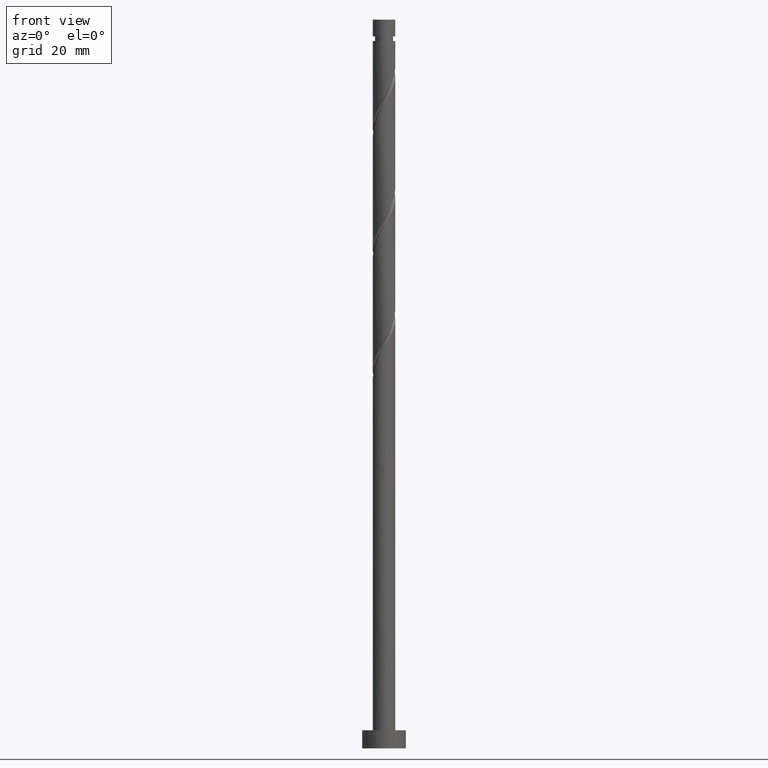
[diagram: clean part render]
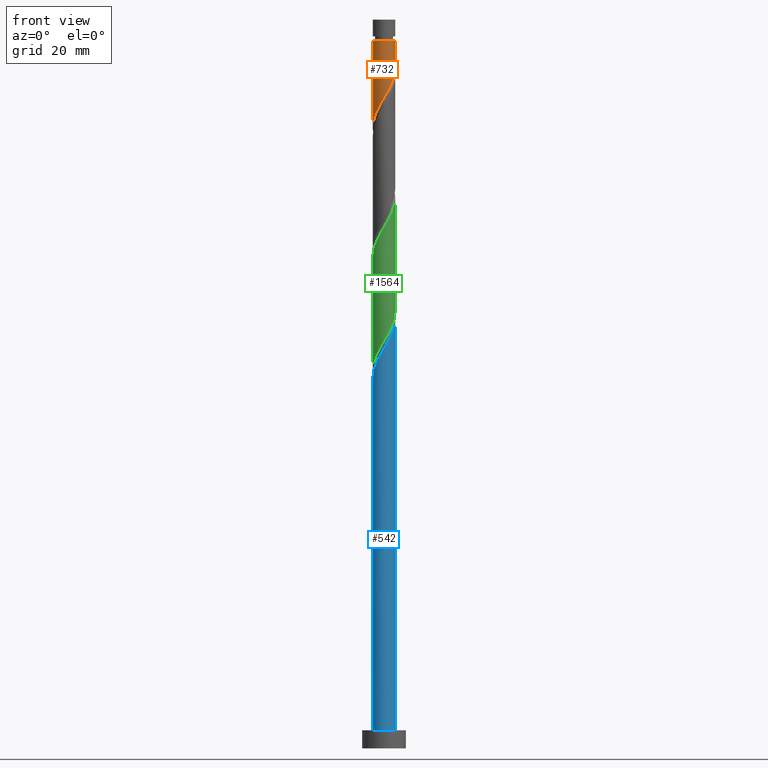
[diagram: same view with three faces highlighted in distinct colors, each labeled with its STEP entity id]
A machine part, front view with three faces highlighted in distinct colors.
Their STEP definitions:

[orange] entity #732 — the highlighted cylindrical surface (edge-blend (fillet) strip) has radius 3.1 mm, axis along (-0, -0, -1).
#70 = DIRECTION ( 'NONE',  ( -0.000000000000000000, -0.000000000000000000, -1.000000000000000000 ) ) ;
#126 = CARTESIAN_POINT ( 'NONE',  ( -3.094146113249972352, -0.1904201403740952703, 170.5278380590662266 ) ) ;
#148 = CARTESIAN_POINT ( 'NONE',  ( -3.100000000000000089, -0.09530005013879230824, 170.3656795134155573 ) ) ;
#200 = CARTESIAN_POINT ( 'NONE',  ( -3.099999999999988098, 0.000000000000000000, 194.1389491701773125 ) ) ;
#213 = CARTESIAN_POINT ( 'NONE',  ( 2.322539071194071436, -2.053244326128037756, 183.0278380590662266 ) ) ;
#231 = CARTESIAN_POINT ( 'NONE',  ( 3.100000000000000977, 1.181348971045986316E-15, 186.8691824920540796 ) ) ;
#258 = CARTESIAN_POINT ( 'NONE',  ( 3.100000000000000089, 3.796405077356794918E-16, 200.0000000000000000 ) ) ;
#353 = CARTESIAN_POINT ( 'NONE',  ( 2.592853814885977215, -1.747476256661028460, 183.7222825035107121 ) ) ;
#373 = CIRCLE ( 'NONE', #1648, 3.099999999999988098 ) ;
#380 = CARTESIAN_POINT ( 'NONE',  ( 0.9847556738719618341, -2.939431282200177353, 180.2500602812884267 ) ) ;
#418 = EDGE_CURVE ( 'NONE', #610, #1373, #826, .T. ) ;
#425 = DIRECTION ( 'NONE',  ( -0.000000000000000000, -0.000000000000000000, -1.000000000000000000 ) ) ;
#488 = CARTESIAN_POINT ( 'NONE',  ( -3.100000000000000089, 0.000000000000000000, 200.0000000000000000 ) ) ;
#504 = CARTESIAN_POINT ( 'NONE',  ( 1.711981735581150632, -2.584399066908311671, 181.6389491701773409 ) ) ;
#526 = DIRECTION ( 'NONE',  ( -1.000000000000000000, 0.000000000000000000, 0.000000000000000000 ) ) ;
#533 = CARTESIAN_POINT ( 'NONE',  ( -0.6168922110061054731, -3.037999999999999812, 177.4722825035106553 ) ) ;
#599 = DIRECTION ( 'NONE',  ( -1.000000000000000000, 0.000000000000000000, 0.000000000000000000 ) ) ;
#610 = VERTEX_POINT ( 'NONE', #200 ) ;
#620 = CARTESIAN_POINT ( 'NONE',  ( 2.956784599678834002, -1.016852498676616312, 185.1111713923995126 ) ) ;
#625 = LINE ( 'NONE', #258, #740 ) ;
#659 = CARTESIAN_POINT ( 'NONE',  ( -1.747476256661028238, -2.592853814885977215, 175.3889491701773125 ) ) ;
#669 = CARTESIAN_POINT ( 'NONE',  ( -1.016852498676614980, -2.956784599678835779, 176.7778380590662834 ) ) ;
#701 = CARTESIAN_POINT ( 'NONE',  ( -3.069076826178780415, -0.5977722040837869510, 171.2222825035106553 ) ) ;
#732 = ADVANCED_FACE ( 'NONE', ( #981 ), #1678, .T. ) ;
#740 = VECTOR ( 'NONE', #1166, 1000.000000000000000 ) ;
#756 = EDGE_CURVE ( 'NONE', #1141, #1373, #1578, .T. ) ;
#773 = CARTESIAN_POINT ( 'NONE',  ( 3.099999999999999645, -0.3115617227303643100, 186.3357561228648080 ) ) ;
#783 = EDGE_LOOP ( 'NONE', ( #1497, #1698, #960, #1402 ) ) ;
#785 = CARTESIAN_POINT ( 'NONE',  ( 0.5977722040837861739, -3.069076826178781303, 179.5556158368440265 ) ) ;
#815 = CARTESIAN_POINT ( 'NONE',  ( 3.100000000000000533, 1.181348971045986316E-15, 186.8691824920540796 ) ) ;
#826 = LINE ( 'NONE', #488, #1110 ) ;
#898 = EDGE_CURVE ( 'NONE', #1419, #610, #373, .T. ) ;
#901 = CARTESIAN_POINT ( 'NONE',  ( 3.099999999999988098, 3.796405077356787029E-16, 194.1389491701773125 ) ) ;
#960 = ORIENTED_EDGE ( 'NONE', *, *, #418, .T. ) ;
#981 = FACE_OUTER_BOUND ( 'NONE', #783, .T. ) ;
#1065 = CARTESIAN_POINT ( 'NONE',  ( -3.100000000000000089, -1.899130624339749892E-15, 170.2025158253874224 ) ) ;
#1106 = CARTESIAN_POINT ( 'NONE',  ( -1.382164377668821054, -2.774819207282405831, 176.0833936146217980 ) ) ;
#1110 = VECTOR ( 'NONE', #1328, 1000.000000000000000 ) ;
#1141 = VERTEX_POINT ( 'NONE', #815 ) ;
#1166 = DIRECTION ( 'NONE',  ( -0.000000000000000000, -0.000000000000000000, -1.000000000000000000 ) ) ;
#1274 = CARTESIAN_POINT ( 'NONE',  ( 0.000000000000000000, 0.000000000000000000, 200.0000000000000000 ) ) ;
#1296 = CARTESIAN_POINT ( 'NONE',  ( 2.052224327502166101, -2.359012395595048606, 182.3333936146217411 ) ) ;
#1301 = EDGE_CURVE ( 'NONE', #1419, #1141, #625, .T. ) ;
#1314 = CARTESIAN_POINT ( 'NONE',  ( 3.037999999999999812, -0.6168922110061054731, 185.8056158368440265 ) ) ;
#1321 = CARTESIAN_POINT ( 'NONE',  ( 0.1904201403740945764, -3.094146113249972796, 178.8611713923995694 ) ) ;
#1328 = DIRECTION ( 'NONE',  ( -0.000000000000000000, -0.000000000000000000, -1.000000000000000000 ) ) ;
#1333 = AXIS2_PLACEMENT_3D ( 'NONE', #1274, #70, #599 ) ;
#1334 = CARTESIAN_POINT ( 'NONE',  ( -2.584399066908310783, -1.711981735581151520, 173.3056158368439696 ) ) ;
#1373 = VERTEX_POINT ( 'NONE', #1445 ) ;
#1402 = ORIENTED_EDGE ( 'NONE', *, *, #756, .F. ) ;
#1419 = VERTEX_POINT ( 'NONE', #901 ) ;
#1445 = CARTESIAN_POINT ( 'NONE',  ( -3.100000000000000533, -1.899130624339749892E-15, 170.2025158253874224 ) ) ;
#1495 = CARTESIAN_POINT ( 'NONE',  ( -2.359012395595048606, -2.052224327502166101, 174.0000602812884836 ) ) ;
#1497 = ORIENTED_EDGE ( 'NONE', *, *, #1301, .F. ) ;
#1543 = CARTESIAN_POINT ( 'NONE',  ( -0.2169319233355973542, -3.119215400321165621, 178.1667269479551408 ) ) ;
#1553 = CARTESIAN_POINT ( 'NONE',  ( 2.774819207282405387, -1.382164377668822164, 184.4167269479550839 ) ) ;
#1578 =( BOUNDED_CURVE ( )  B_SPLINE_CURVE ( 2, ( #231, #773, #1314, #620, #1553, #353, #213, #1296, #504, #1582, #380, #785, #1321, #1543, #533, #669, #1106, #659, #1749, #1495, #1334, #1627, #1616, #701, #126, #148, #1065 ),
 .UNSPECIFIED., .F., .T. ) 
 B_SPLINE_CURVE_WITH_KNOTS ( ( 3, 2, 2, 2, 2, 2, 2, 2, 2, 2, 2, 2, 2, 3 ),
 ( 0.3045317669814464612, 0.3125000000000000000, 0.3229166666666666852, 0.3333333333333333148, 0.3437500000000000000, 0.3541666666666666852, 0.3645833333333333148, 0.3750000000000000000, 0.3854166666666666852, 0.3958333333333333148, 0.4062500000000000000, 0.4166666666666666852, 0.4270833333333333148, 0.4295317669814461281 ),
 .UNSPECIFIED. ) 
 CURVE ( )  GEOMETRIC_REPRESENTATION_ITEM ( )  RATIONAL_B_SPLINE_CURVE ( ( 0.9062941362546447222, 0.9031415850403492485, 0.9090909090909243817, 0.9013135103398428605, 0.9090909090909243817, 0.9013135103398428605, 0.9090909090909243817, 0.9013135103398428605, 0.9090909090909243817, 0.9013135103398428605, 0.9090909090909243817, 0.9013135103398428605, 0.9090909090909243817, 0.9013135103398428605, 0.9090909090909243817, 0.9013135103398428605, 0.9090909090909243817, 0.9013135103398428605, 0.9090909090909243817, 0.9013135103398428605, 0.9090909090909243817, 0.9013135103398428605, 0.9090909090909243817, 0.9013135103398428605, 0.9090909090909243817, 0.9072628343904183268, 0.9062941362546449442 ) ) 
 REPRESENTATION_ITEM ( '' )  );
#1582 = CARTESIAN_POINT ( 'NONE',  ( 1.371739143660136495, -2.809785738221574292, 180.9445047257328838 ) ) ;
#1616 = CARTESIAN_POINT ( 'NONE',  ( -2.939431282200177353, -0.9847556738719620562, 171.9167269479551123 ) ) ;
#1627 = CARTESIAN_POINT ( 'NONE',  ( -2.809785738221574292, -1.371739143660136495, 172.6111713923995126 ) ) ;
#1648 = AXIS2_PLACEMENT_3D ( 'NONE', #1738, #425, #526 ) ;
#1678 = CYLINDRICAL_SURFACE ( 'NONE', #1333, 3.100000000000000089 ) ;
#1698 = ORIENTED_EDGE ( 'NONE', *, *, #898, .T. ) ;
#1738 = CARTESIAN_POINT ( 'NONE',  ( 0.000000000000000000, 0.000000000000000000, 194.1389491701773125 ) ) ;
#1749 = CARTESIAN_POINT ( 'NONE',  ( -2.053244326128037756, -2.322539071194071436, 174.6945047257329406 ) ) ;

[blue] entity #542 — the highlighted cylindrical surface (edge-blend (fillet) strip) has radius 3.1 mm, axis along (-0, -0, -1).
#18 = CARTESIAN_POINT ( 'NONE',  ( -3.100000000000002309, -1.958945762114218998E-15, 101.4087158483005453 ) ) ;
#66 = CARTESIAN_POINT ( 'NONE',  ( -2.956784599678840220, -1.016852498676614092, 103.1667269479550839 ) ) ;
#95 = CARTESIAN_POINT ( 'NONE',  ( 0.2169319233355950505, -3.119215400321167841, 110.1111713923995268 ) ) ;
#120 = CARTESIAN_POINT ( 'NONE',  ( 3.094146113249975460, -0.1904201403740988507, 117.7500602812884267 ) ) ;
#161 = ORIENTED_EDGE ( 'NONE', *, *, #453, .T. ) ;
#164 = CIRCLE ( 'NONE', #1187, 3.100000000000000089 ) ;
#226 = CARTESIAN_POINT ( 'NONE',  ( -2.774819207282409383, -1.382164377668821054, 103.8611713923995268 ) ) ;
#247 = DIRECTION ( 'NONE',  ( -1.000000000000000000, 0.000000000000000000, 0.000000000000000000 ) ) ;
#252 = CARTESIAN_POINT ( 'NONE',  ( 3.100000000000000089, 3.796405077356794918E-16, 200.0000000000000000 ) ) ;
#254 = CARTESIAN_POINT ( 'NONE',  ( 1.016852498676613870, -2.956784599678840220, 111.5000602812884267 ) ) ;
#256 = LINE ( 'NONE', #1370, #1614 ) ;
#262 = CARTESIAN_POINT ( 'NONE',  ( 0.000000000000000000, 0.000000000000000000, 200.0000000000000000 ) ) ;
#306 = CARTESIAN_POINT ( 'NONE',  ( -0.1904201403740973519, -3.094146113249975460, 109.4167269479550697 ) ) ;
#342 = EDGE_LOOP ( 'NONE', ( #1688, #1152, #1693, #161 ) ) ;
#371 = VERTEX_POINT ( 'NONE', #1625 ) ;
#375 = CARTESIAN_POINT ( 'NONE',  ( 3.100000000000002309, -0.09530005013880189779, 117.9122188269390819 ) ) ;
#435 = CARTESIAN_POINT ( 'NONE',  ( -1.371739143660140492, -2.809785738221576512, 107.3333936146217695 ) ) ;
#453 = EDGE_CURVE ( 'NONE', #371, #692, #164, .T. ) ;
#498 = CARTESIAN_POINT ( 'NONE',  ( 1.747476256661027350, -2.592853814885982100, 112.8889491701772982 ) ) ;
#510 = CARTESIAN_POINT ( 'NONE',  ( 3.069076826178783524, -0.5977722040837909478, 117.0556158368439839 ) ) ;
#542 = ADVANCED_FACE ( 'NONE', ( #631 ), #1061, .T. ) ;
#627 = CARTESIAN_POINT ( 'NONE',  ( -3.100000000000002309, -1.958945762114218998E-15, 101.4087158483005453 ) ) ;
#631 = FACE_OUTER_BOUND ( 'NONE', #342, .T. ) ;
#692 = VERTEX_POINT ( 'NONE', #1126 ) ;
#769 = CARTESIAN_POINT ( 'NONE',  ( 2.939431282200180462, -0.9847556738719657199, 116.3611713923995268 ) ) ;
#777 = CARTESIAN_POINT ( 'NONE',  ( 3.100000000000002309, 0.000000000000000000, 118.0753825149672167 ) ) ;
#791 = CARTESIAN_POINT ( 'NONE',  ( 2.359012395595049938, -2.052224327502170542, 114.2778380590661840 ) ) ;
#792 = CARTESIAN_POINT ( 'NONE',  ( 0.000000000000000000, 0.000000000000000000, 5.000000000000000000 ) ) ;
#798 = LINE ( 'NONE', #252, #941 ) ;
#844 = EDGE_CURVE ( 'NONE', #1073, #371, #256, .T. ) ;
#859 = AXIS2_PLACEMENT_3D ( 'NONE', #262, #1591, #247 ) ;
#871 =( BOUNDED_CURVE ( )  B_SPLINE_CURVE ( 2, ( #18, #884, #1287, #66, #226, #1020, #1548, #1144, #1029, #435, #978, #1504, #306, #95, #1206, #254, #1186, #498, #1078, #791, #1178, #1327, #769, #510, #120, #375, #777 ),
 .UNSPECIFIED., .F., .T. ) 
 B_SPLINE_CURVE_WITH_KNOTS ( ( 3, 2, 2, 2, 2, 2, 2, 2, 2, 2, 2, 2, 2, 3 ),
 ( 0.05453176698144607260, 0.06250000000000000000, 0.07291666666666662966, 0.08333333333333337034, 0.09375000000000000000, 0.1041666666666666297, 0.1145833333333333703, 0.1250000000000000000, 0.1354166666666666297, 0.1458333333333333703, 0.1562500000000000000, 0.1666666666666666297, 0.1770833333333333703, 0.1795317669814460171 ),
 .UNSPECIFIED. ) 
 CURVE ( )  GEOMETRIC_REPRESENTATION_ITEM ( )  RATIONAL_B_SPLINE_CURVE ( ( 0.9062941362546501622, 0.9031415850403541334, 0.9090909090909298218, 0.9013135103398480785, 0.9090909090909298218, 0.9013135103398480785, 0.9090909090909298218, 0.9013135103398480785, 0.9090909090909298218, 0.9013135103398480785, 0.9090909090909298218, 0.9013135103398480785, 0.9090909090909298218, 0.9013135103398480785, 0.9090909090909298218, 0.9013135103398480785, 0.9090909090909298218, 0.9013135103398480785, 0.9090909090909298218, 0.9013135103398480785, 0.9090909090909298218, 0.9013135103398480785, 0.9090909090909298218, 0.9013135103398480785, 0.9090909090909298218, 0.9072628343904237669, 0.9062941362546502733 ) ) 
 REPRESENTATION_ITEM ( '' )  );
#884 = CARTESIAN_POINT ( 'NONE',  ( -3.100000000000005418, -0.3115617227303464354, 101.9421422174898169 ) ) ;
#941 = VECTOR ( 'NONE', #1337, 1000.000000000000000 ) ;
#978 = CARTESIAN_POINT ( 'NONE',  ( -0.9847556738719654978, -2.939431282200180462, 108.0278380590662124 ) ) ;
#995 = EDGE_CURVE ( 'NONE', #1073, #1670, #871, .T. ) ;
#1020 = CARTESIAN_POINT ( 'NONE',  ( -2.592853814885981656, -1.747476256661028016, 104.5556158368439554 ) ) ;
#1029 = CARTESIAN_POINT ( 'NONE',  ( -1.711981735581154407, -2.584399066908313003, 106.6389491701773125 ) ) ;
#1061 = CYLINDRICAL_SURFACE ( 'NONE', #859, 3.100000000000000089 ) ;
#1073 = VERTEX_POINT ( 'NONE', #627 ) ;
#1078 = CARTESIAN_POINT ( 'NONE',  ( 2.053244326128038200, -2.322539071194075877, 113.5833936146217269 ) ) ;
#1126 = CARTESIAN_POINT ( 'NONE',  ( 3.100000000000000089, 3.796405077356794918E-16, 5.000000000000000000 ) ) ;
#1144 = CARTESIAN_POINT ( 'NONE',  ( -2.052224327502170542, -2.359012395595049938, 105.9445047257328696 ) ) ;
#1152 = ORIENTED_EDGE ( 'NONE', *, *, #995, .F. ) ;
#1178 = CARTESIAN_POINT ( 'NONE',  ( 2.584399066908312115, -1.711981735581156183, 114.9722825035106410 ) ) ;
#1186 = CARTESIAN_POINT ( 'NONE',  ( 1.382164377668820388, -2.774819207282409383, 112.1945047257328696 ) ) ;
#1187 = AXIS2_PLACEMENT_3D ( 'NONE', #792, #1432, #1448 ) ;
#1192 = CARTESIAN_POINT ( 'NONE',  ( 3.100000000000002309, 0.000000000000000000, 118.0753825149672167 ) ) ;
#1200 = DIRECTION ( 'NONE',  ( -0.000000000000000000, -0.000000000000000000, -1.000000000000000000 ) ) ;
#1206 = CARTESIAN_POINT ( 'NONE',  ( 0.6168922110061049180, -3.038000000000003364, 110.8056158368439696 ) ) ;
#1287 = CARTESIAN_POINT ( 'NONE',  ( -3.038000000000003364, -0.6168922110061052511, 102.4722825035106268 ) ) ;
#1327 = CARTESIAN_POINT ( 'NONE',  ( 2.809785738221576512, -1.371739143660140492, 115.6667269479550981 ) ) ;
#1336 = EDGE_CURVE ( 'NONE', #1670, #692, #798, .T. ) ;
#1337 = DIRECTION ( 'NONE',  ( -0.000000000000000000, -0.000000000000000000, -1.000000000000000000 ) ) ;
#1370 = CARTESIAN_POINT ( 'NONE',  ( -3.100000000000000089, 0.000000000000000000, 200.0000000000000000 ) ) ;
#1432 = DIRECTION ( 'NONE',  ( 0.000000000000000000, 0.000000000000000000, 1.000000000000000000 ) ) ;
#1448 = DIRECTION ( 'NONE',  ( 1.000000000000000000, 0.000000000000000000, 0.000000000000000000 ) ) ;
#1504 = CARTESIAN_POINT ( 'NONE',  ( -0.5977722040837896156, -3.069076826178783968, 108.7222825035106553 ) ) ;
#1548 = CARTESIAN_POINT ( 'NONE',  ( -2.322539071194074545, -2.053244326128038200, 105.2500602812884125 ) ) ;
#1591 = DIRECTION ( 'NONE',  ( -0.000000000000000000, -0.000000000000000000, -1.000000000000000000 ) ) ;
#1614 = VECTOR ( 'NONE', #1200, 1000.000000000000000 ) ;
#1625 = CARTESIAN_POINT ( 'NONE',  ( -3.100000000000000089, 0.000000000000000000, 5.000000000000000000 ) ) ;
#1670 = VERTEX_POINT ( 'NONE', #1192 ) ;
#1688 = ORIENTED_EDGE ( 'NONE', *, *, #1336, .F. ) ;
#1693 = ORIENTED_EDGE ( 'NONE', *, *, #844, .T. ) ;

[green] entity #1564 — the highlighted cylindrical surface (edge-blend (fillet) strip) has radius 3.1 mm, axis along (-0, -0, -1).
#32 = EDGE_CURVE ( 'NONE', #752, #742, #1320, .T. ) ;
#47 = CARTESIAN_POINT ( 'NONE',  ( 0.5977722040837861739, -3.069076826178781303, 112.8889491701772982 ) ) ;
#58 = CARTESIAN_POINT ( 'NONE',  ( 1.016852498676613870, -2.956784599678840220, 144.8333936146217980 ) ) ;
#74 = CARTESIAN_POINT ( 'NONE',  ( 3.069076826178783524, -0.5977722040837909478, 150.3889491701773125 ) ) ;
#122 = AXIS2_PLACEMENT_3D ( 'NONE', #881, #1411, #204 ) ;
#143 = CARTESIAN_POINT ( 'NONE',  ( 2.774819207282405387, -1.382164377668822164, 117.7500602812884267 ) ) ;
#165 = CARTESIAN_POINT ( 'NONE',  ( 2.052224327502166101, -2.359012395595048606, 115.6667269479551123 ) ) ;
#174 = CARTESIAN_POINT ( 'NONE',  ( 0.1904201403740945764, -3.094146113249972796, 112.1945047257328838 ) ) ;
#184 = EDGE_CURVE ( 'NONE', #710, #752, #1374, .T. ) ;
#193 = CARTESIAN_POINT ( 'NONE',  ( 2.584399066908312115, -1.711981735581156183, 148.3056158368439696 ) ) ;
#197 = ORIENTED_EDGE ( 'NONE', *, *, #184, .F. ) ;
#202 = CARTESIAN_POINT ( 'NONE',  ( -2.052224327502170542, -2.359012395595049938, 139.2778380590661982 ) ) ;
#204 = DIRECTION ( 'NONE',  ( -1.000000000000000000, 0.000000000000000000, 0.000000000000000000 ) ) ;
#218 = CARTESIAN_POINT ( 'NONE',  ( 2.359012395595049938, -2.052224327502170542, 147.6111713923995410 ) ) ;
#220 = CARTESIAN_POINT ( 'NONE',  ( 3.100000000000002309, 0.000000000000000000, 151.4087158483005169 ) ) ;
#279 = CARTESIAN_POINT ( 'NONE',  ( -3.100000000000000977, -5.174009417492547968E-15, 103.5358491587207368 ) ) ;
#289 = CARTESIAN_POINT ( 'NONE',  ( 3.100000000000001865, -0.3115617227303499326, 119.6690894561981082 ) ) ;
#300 = CARTESIAN_POINT ( 'NONE',  ( -1.382164377668821054, -2.774819207282405831, 109.4167269479551123 ) ) ;
#312 = CARTESIAN_POINT ( 'NONE',  ( 2.592853814885977215, -1.747476256661028460, 117.0556158368439981 ) ) ;
#339 = CARTESIAN_POINT ( 'NONE',  ( -3.038000000000003364, -0.6168922110061052511, 135.8056158368439696 ) ) ;
#354 = VERTEX_POINT ( 'NONE', #1210 ) ;
#362 = ORIENTED_EDGE ( 'NONE', *, *, #32, .F. ) ;
#387 = DIRECTION ( 'NONE',  ( -0.000000000000000000, -0.000000000000000000, -1.000000000000000000 ) ) ;
#440 =( BOUNDED_CURVE ( )  B_SPLINE_CURVE ( 2, ( #1058, #289, #1214, #1355, #143, #312, #682, #165, #1237, #450, #706, #47, #174, #1119, #973, #982, #300, #832, #1633, #1226, #989, #441, #715, #1383, #1652, #1508, #279 ),
 .UNSPECIFIED., .F., .T. ) 
 B_SPLINE_CURVE_WITH_KNOTS ( ( 3, 2, 2, 2, 2, 2, 2, 2, 2, 2, 2, 2, 2, 3 ),
 ( 0.8045317669814461281, 0.8125000000000000000, 0.8229166666666666297, 0.8333333333333333703, 0.8437500000000000000, 0.8541666666666666297, 0.8645833333333333703, 0.8750000000000000000, 0.8854166666666666297, 0.8958333333333333703, 0.9062500000000000000, 0.9166666666666666297, 0.9270833333333333703, 0.9295317669814463502 ),
 .UNSPECIFIED. ) 
 CURVE ( )  GEOMETRIC_REPRESENTATION_ITEM ( )  RATIONAL_B_SPLINE_CURVE ( ( 0.9062941362546449442, 0.9031415850403489154, 0.9090909090909243817, 0.9013135103398428605, 0.9090909090909243817, 0.9013135103398428605, 0.9090909090909243817, 0.9013135103398428605, 0.9090909090909243817, 0.9013135103398428605, 0.9090909090909243817, 0.9013135103398428605, 0.9090909090909243817, 0.9013135103398428605, 0.9090909090909243817, 0.9013135103398428605, 0.9090909090909243817, 0.9013135103398428605, 0.9090909090909243817, 0.9013135103398428605, 0.9090909090909243817, 0.9013135103398428605, 0.9090909090909243817, 0.9013135103398428605, 0.9090909090909243817, 0.9072628343904181047, 0.9062941362546446111 ) ) 
 REPRESENTATION_ITEM ( '' )  );
#441 = CARTESIAN_POINT ( 'NONE',  ( -2.809785738221574292, -1.371739143660136495, 105.9445047257328696 ) ) ;
#450 = CARTESIAN_POINT ( 'NONE',  ( 1.371739143660136495, -2.809785738221574292, 114.2778380590661840 ) ) ;
#473 = CARTESIAN_POINT ( 'NONE',  ( -3.100000000000002309, -1.958945762114218998E-15, 134.7420491816338597 ) ) ;
#475 = ORIENTED_EDGE ( 'NONE', *, *, #781, .T. ) ;
#516 = LINE ( 'NONE', #1095, #1024 ) ;
#556 = VECTOR ( 'NONE', #1171, 1000.000000000000000 ) ;
#587 = CARTESIAN_POINT ( 'NONE',  ( -3.100000000000005418, -0.3115617227303442704, 135.2754755508231312 ) ) ;
#594 = CARTESIAN_POINT ( 'NONE',  ( -1.711981735581154407, -2.584399066908313003, 139.9722825035105984 ) ) ;
#603 = CARTESIAN_POINT ( 'NONE',  ( -0.1904201403740973519, -3.094146113249975460, 142.7500602812884551 ) ) ;
#608 = CARTESIAN_POINT ( 'NONE',  ( -0.9847556738719654978, -2.939431282200180462, 141.3611713923995694 ) ) ;
#682 = CARTESIAN_POINT ( 'NONE',  ( 2.322539071194071436, -2.053244326128037756, 116.3611713923995268 ) ) ;
#706 = CARTESIAN_POINT ( 'NONE',  ( 0.9847556738719618341, -2.939431282200177353, 113.5833936146217553 ) ) ;
#710 = VERTEX_POINT ( 'NONE', #1004 ) ;
#715 = CARTESIAN_POINT ( 'NONE',  ( -2.939431282200177353, -0.9847556738719620562, 105.2500602812884409 ) ) ;
#739 = CARTESIAN_POINT ( 'NONE',  ( -1.371739143660140492, -2.809785738221576512, 140.6667269479550839 ) ) ;
#742 = VERTEX_POINT ( 'NONE', #1172 ) ;
#752 = VERTEX_POINT ( 'NONE', #220 ) ;
#781 = EDGE_CURVE ( 'NONE', #710, #354, #516, .T. ) ;
#807 = CARTESIAN_POINT ( 'NONE',  ( 3.100000000000000089, 3.796405077356794918E-16, 200.0000000000000000 ) ) ;
#832 = CARTESIAN_POINT ( 'NONE',  ( -1.747476256661028238, -2.592853814885977215, 108.7222825035106410 ) ) ;
#861 = CARTESIAN_POINT ( 'NONE',  ( -2.592853814885981656, -1.747476256661028016, 137.8889491701773409 ) ) ;
#877 = CARTESIAN_POINT ( 'NONE',  ( 0.6168922110061049180, -3.038000000000003364, 144.1389491701773409 ) ) ;
#881 = CARTESIAN_POINT ( 'NONE',  ( 0.000000000000000000, 0.000000000000000000, 200.0000000000000000 ) ) ;
#886 = CARTESIAN_POINT ( 'NONE',  ( 3.094146113249975460, -0.1904201403740988507, 151.0833936146217411 ) ) ;
#900 = EDGE_LOOP ( 'NONE', ( #362, #197, #475, #1619 ) ) ;
#973 = CARTESIAN_POINT ( 'NONE',  ( -0.6168922110061054731, -3.037999999999999812, 110.8056158368439696 ) ) ;
#982 = CARTESIAN_POINT ( 'NONE',  ( -1.016852498676614980, -2.956784599678835779, 110.1111713923995268 ) ) ;
#989 = CARTESIAN_POINT ( 'NONE',  ( -2.584399066908310783, -1.711981735581151520, 106.6389491701772982 ) ) ;
#1004 = CARTESIAN_POINT ( 'NONE',  ( -3.100000000000002309, -1.958945762114218998E-15, 134.7420491816338597 ) ) ;
#1023 = CARTESIAN_POINT ( 'NONE',  ( 2.809785738221576512, -1.371739143660140492, 149.0000602812884267 ) ) ;
#1024 = VECTOR ( 'NONE', #387, 1000.000000000000000 ) ;
#1058 = CARTESIAN_POINT ( 'NONE',  ( 3.100000000000000089, 4.501089117529644308E-15, 120.2025158253874082 ) ) ;
#1095 = CARTESIAN_POINT ( 'NONE',  ( -3.100000000000000089, 0.000000000000000000, 200.0000000000000000 ) ) ;
#1111 = EDGE_CURVE ( 'NONE', #742, #354, #440, .T. ) ;
#1119 = CARTESIAN_POINT ( 'NONE',  ( -0.2169319233355973542, -3.119215400321165621, 111.5000602812884551 ) ) ;
#1127 = FACE_OUTER_BOUND ( 'NONE', #900, .T. ) ;
#1138 = CARTESIAN_POINT ( 'NONE',  ( 1.382164377668820388, -2.774819207282409383, 145.5278380590661982 ) ) ;
#1145 = CARTESIAN_POINT ( 'NONE',  ( 3.100000000000002309, -0.09530005013879755404, 151.2455521602723536 ) ) ;
#1171 = DIRECTION ( 'NONE',  ( -0.000000000000000000, -0.000000000000000000, -1.000000000000000000 ) ) ;
#1172 = CARTESIAN_POINT ( 'NONE',  ( 3.100000000000000533, 4.501089117529644308E-15, 120.2025158253874082 ) ) ;
#1210 = CARTESIAN_POINT ( 'NONE',  ( -3.100000000000000977, -5.174009417492547968E-15, 103.5358491587207368 ) ) ;
#1214 = CARTESIAN_POINT ( 'NONE',  ( 3.037999999999999812, -0.6168922110061054731, 119.1389491701773267 ) ) ;
#1226 = CARTESIAN_POINT ( 'NONE',  ( -2.359012395595048606, -2.052224327502166101, 107.3333936146217837 ) ) ;
#1237 = CARTESIAN_POINT ( 'NONE',  ( 1.711981735581150632, -2.584399066908311671, 114.9722825035106695 ) ) ;
#1265 = CARTESIAN_POINT ( 'NONE',  ( -2.774819207282409383, -1.382164377668821054, 137.1945047257328554 ) ) ;
#1279 = CARTESIAN_POINT ( 'NONE',  ( 2.939431282200180462, -0.9847556738719657199, 149.6945047257328270 ) ) ;
#1320 = LINE ( 'NONE', #807, #556 ) ;
#1355 = CARTESIAN_POINT ( 'NONE',  ( 2.956784599678834002, -1.016852498676616312, 118.4445047257328838 ) ) ;
#1374 =( BOUNDED_CURVE ( )  B_SPLINE_CURVE ( 2, ( #473, #587, #339, #1424, #1265, #861, #1393, #202, #594, #739, #608, #1540, #603, #1696, #877, #58, #1138, #1674, #1550, #218, #193, #1023, #1279, #74, #886, #1145, #1691 ),
 .UNSPECIFIED., .F., .T. ) 
 B_SPLINE_CURVE_WITH_KNOTS ( ( 3, 2, 2, 2, 2, 2, 2, 2, 2, 2, 2, 2, 2, 3 ),
 ( 0.3045317669814460171, 0.3125000000000000000, 0.3229166666666666297, 0.3333333333333333703, 0.3437500000000000000, 0.3541666666666666297, 0.3645833333333333703, 0.3750000000000000000, 0.3854166666666666297, 0.3958333333333333703, 0.4062500000000000000, 0.4166666666666666297, 0.4270833333333333703, 0.4295317669814461281 ),
 .UNSPECIFIED. ) 
 CURVE ( )  GEOMETRIC_REPRESENTATION_ITEM ( )  RATIONAL_B_SPLINE_CURVE ( ( 0.9062941362546502733, 0.9031415850403540224, 0.9090909090909298218, 0.9013135103398480785, 0.9090909090909298218, 0.9013135103398480785, 0.9090909090909298218, 0.9013135103398480785, 0.9090909090909298218, 0.9013135103398480785, 0.9090909090909298218, 0.9013135103398480785, 0.9090909090909298218, 0.9013135103398480785, 0.9090909090909298218, 0.9013135103398480785, 0.9090909090909298218, 0.9013135103398480785, 0.9090909090909298218, 0.9013135103398480785, 0.9090909090909298218, 0.9013135103398480785, 0.9090909090909298218, 0.9013135103398480785, 0.9090909090909298218, 0.9072628343904236559, 0.9062941362546502733 ) ) 
 REPRESENTATION_ITEM ( '' )  );
#1383 = CARTESIAN_POINT ( 'NONE',  ( -3.069076826178780415, -0.5977722040837869510, 104.5556158368440123 ) ) ;
#1393 = CARTESIAN_POINT ( 'NONE',  ( -2.322539071194074545, -2.053244326128038200, 138.5833936146217411 ) ) ;
#1411 = DIRECTION ( 'NONE',  ( -0.000000000000000000, -0.000000000000000000, -1.000000000000000000 ) ) ;
#1424 = CARTESIAN_POINT ( 'NONE',  ( -2.956784599678840220, -1.016852498676614092, 136.5000602812883983 ) ) ;
#1508 = CARTESIAN_POINT ( 'NONE',  ( -3.100000000000000977, -0.09530005013878531384, 103.6990128467488859 ) ) ;
#1537 = CYLINDRICAL_SURFACE ( 'NONE', #122, 3.100000000000000089 ) ;
#1540 = CARTESIAN_POINT ( 'NONE',  ( -0.5977722040837896156, -3.069076826178783968, 142.0556158368440549 ) ) ;
#1550 = CARTESIAN_POINT ( 'NONE',  ( 2.053244326128038200, -2.322539071194075877, 146.9167269479551408 ) ) ;
#1564 = ADVANCED_FACE ( 'NONE', ( #1127 ), #1537, .T. ) ;
#1619 = ORIENTED_EDGE ( 'NONE', *, *, #1111, .F. ) ;
#1633 = CARTESIAN_POINT ( 'NONE',  ( -2.053244326128037756, -2.322539071194071436, 108.0278380590661840 ) ) ;
#1652 = CARTESIAN_POINT ( 'NONE',  ( -3.094146113249972352, -0.1904201403740952703, 103.8611713923995410 ) ) ;
#1674 = CARTESIAN_POINT ( 'NONE',  ( 1.747476256661027350, -2.592853814885982100, 146.2222825035106553 ) ) ;
#1691 = CARTESIAN_POINT ( 'NONE',  ( 3.100000000000002309, 0.000000000000000000, 151.4087158483005453 ) ) ;
#1696 = CARTESIAN_POINT ( 'NONE',  ( 0.2169319233355950505, -3.119215400321167841, 143.4445047257328270 ) ) ;